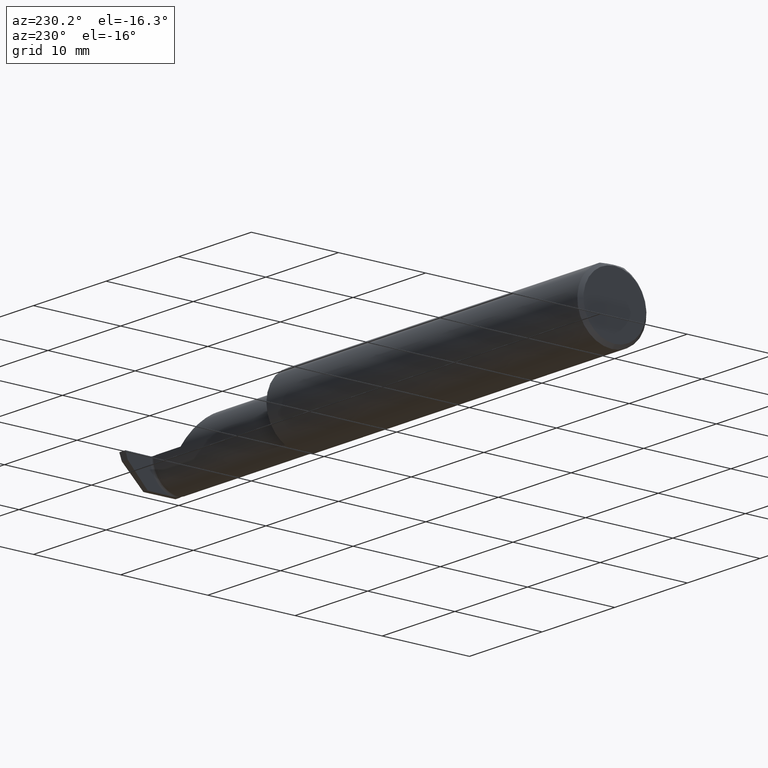
[diagram: clean part render]
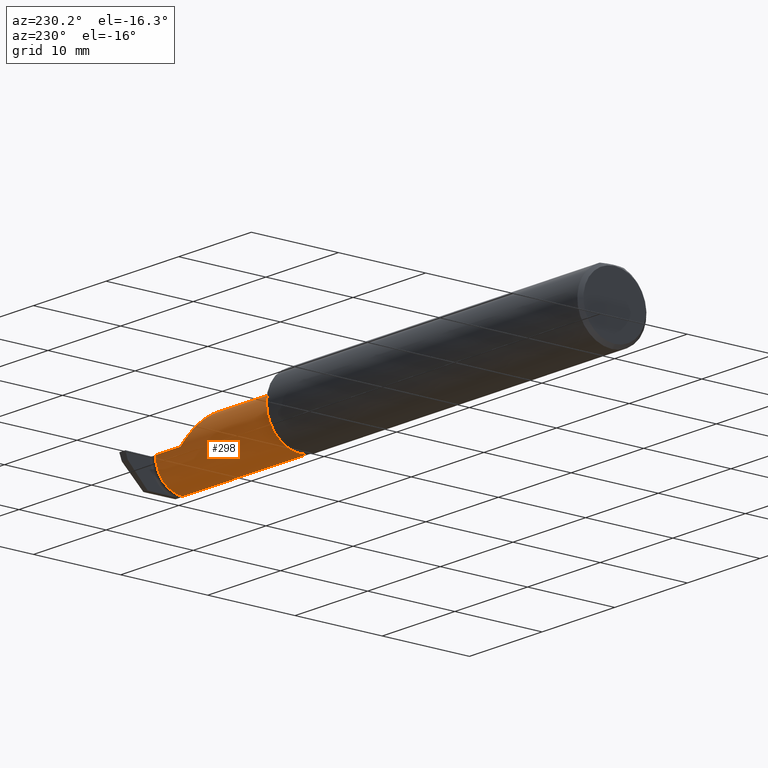
[diagram: same view with one face highlighted and labeled with its STEP entity id]
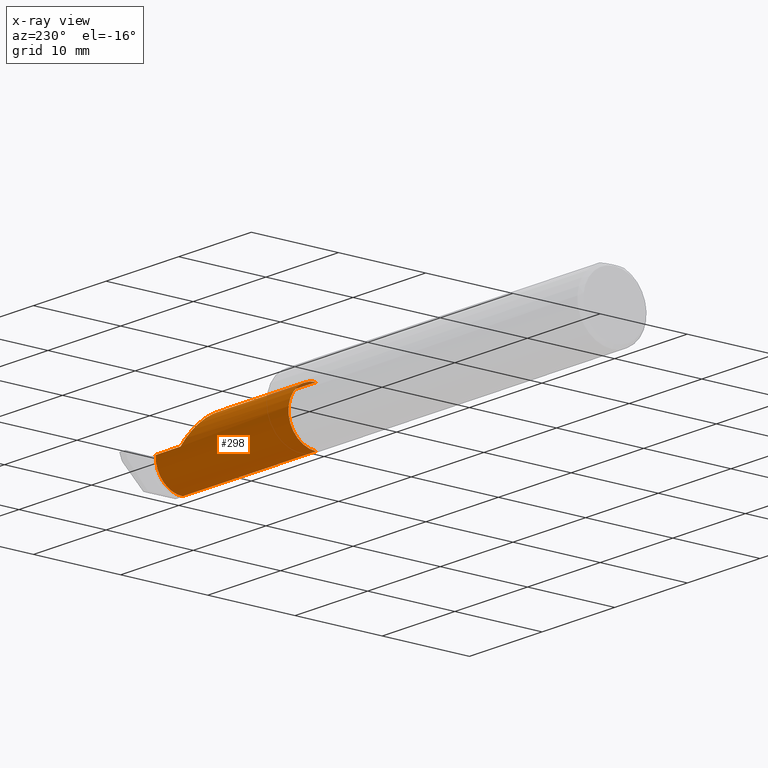
[diagram: x-ray of the same camera — body ghosted, the highlighted face saturated]
A machine part, auxiliary view. The second image highlights one B-rep face of the part: STEP entity #298.
The next image is the same camera in x-ray: the body ghosted, the highlighted face saturated — about 1% of this face is hidden behind the body in this view.
In plain terms, the highlighted cylindrical surface (edge-blend (fillet) strip) has radius 3.175 mm, axis along (-1, -0, -0).
Its self-contained STEP definition (entity closure, byte-faithful):
#34 = ORIENTED_EDGE ( 'NONE', *, *, #652, .T. ) ;
#58 = CARTESIAN_POINT ( 'NONE',  ( 2.444500000000001450, 0.03590000000000021646, 7.028497217765240013E-18 ) ) ;
#63 = VECTOR ( 'NONE', #1084, 39.37007874015748143 ) ;
#100 = CARTESIAN_POINT ( 'NONE',  ( 1.724999999999999867, -0.08909999999999998477, 0.1250000000000000000 ) ) ;
#111 = CARTESIAN_POINT ( 'NONE',  ( 2.310000000000000053, 0.03589999999999998748, 2.326828918379970872E-17 ) ) ;
#115 = ORIENTED_EDGE ( 'NONE', *, *, #343, .T. ) ;
#207 = CARTESIAN_POINT ( 'NONE',  ( 2.448913571814039791, -0.03369782742854580265, -0.1123476434581986705 ) ) ;
#211 = B_SPLINE_CURVE_WITH_KNOTS ( 'NONE', 3,
 ( #58, #973, #315, #372, #1053, #221, #305, #293, #460, #960, #310, #540, #207, #978, #898, #213, #1069, #477 ),
 .UNSPECIFIED., .F., .F.,
 ( 4, 2, 2, 2, 2, 2, 2, 2, 4 ),
 ( 0.000000000000000000, 0.0006227411263175625360, 0.001245482252635124855, 0.001868223378952686958, 0.002490964505270249710, 0.003113705631587812030, 0.003736446757905374783, 0.004359187884222937535, 0.004981929010540499421 ),
 .UNSPECIFIED. ) ;
#212 = DIRECTION ( 'NONE',  ( 1.000000000000000000, 0.000000000000000000, 0.000000000000000000 ) ) ;
#213 = CARTESIAN_POINT ( 'NONE',  ( 2.449412845796526739, -0.07276030810656955450, -0.1241975159408240520 ) ) ;
#221 = CARTESIAN_POINT ( 'NONE',  ( 2.446698173342042537, 0.02323142959458846316, -0.05543537990692439660 ) ) ;
#233 = ORIENTED_EDGE ( 'NONE', *, *, #805, .F. ) ;
#235 = LINE ( 'NONE', #732, #622 ) ;
#239 = VERTEX_POINT ( 'NONE', #385 ) ;
#248 = DIRECTION ( 'NONE',  ( -1.000000000000000000, -0.000000000000000000, -0.000000000000000000 ) ) ;
#279 = VERTEX_POINT ( 'NONE', #707 ) ;
#293 = CARTESIAN_POINT ( 'NONE',  ( 2.447475350432989138, 0.01027685705744557816, -0.07626677045909130426 ) ) ;
#298 = ADVANCED_FACE ( 'NONE', ( #797 ), #1057, .T. ) ;
#299 = CARTESIAN_POINT ( 'NONE',  ( 1.699999999999999956, -0.08909999999999998477, 0.000000000000000000 ) ) ;
#305 = CARTESIAN_POINT ( 'NONE',  ( 2.446973910809203900, 0.01939704973137099803, -0.06261605380782230001 ) ) ;
#310 = CARTESIAN_POINT ( 'NONE',  ( 2.448432691260384875, -0.01281923365878034037, -0.09936793747224012541 ) ) ;
#315 = CARTESIAN_POINT ( 'NONE',  ( 2.445122545141266812, 0.03509086031723458038, -0.01638619919017511584 ) ) ;
#343 = EDGE_CURVE ( 'NONE', #239, #279, #235, .T. ) ;
#352 = ORIENTED_EDGE ( 'NONE', *, *, #916, .T. ) ;
#353 = CARTESIAN_POINT ( 'NONE',  ( 2.185000000000000941, -0.01587669529663685714, 0.1250000000000000278 ) ) ;
#358 = CARTESIAN_POINT ( 'NONE',  ( 2.236776695296637474, 0.03590000000000000829, 0.07322330470336313457 ) ) ;
#372 = CARTESIAN_POINT ( 'NONE',  ( 2.445747129114881790, 0.03189735516174357216, -0.03242710832155488998 ) ) ;
#376 = VECTOR ( 'NONE', #738, 39.37007874015748143 ) ;
#385 = CARTESIAN_POINT ( 'NONE',  ( 2.310000000000000053, 0.03589999999999998748, 2.326828918379970872E-17 ) ) ;
#417 = ORIENTED_EDGE ( 'NONE', *, *, #447, .F. ) ;
#427 = AXIS2_PLACEMENT_3D ( 'NONE', #997, #248, #829 ) ;
#447 = EDGE_CURVE ( 'NONE', #658, #891, #481, .T. ) ;
#460 = CARTESIAN_POINT ( 'NONE',  ( 2.447717782613100468, 0.005034117901016875105, -0.08264370434526399634 ) ) ;
#468 = CARTESIAN_POINT ( 'NONE',  ( 2.185000000000000941, -0.08909999999999998477, 0.1250000000000000000 ) ) ;
#477 = CARTESIAN_POINT ( 'NONE',  ( 2.449428652511890903, -0.08909999999992178343, -0.1249999999999999445 ) ) ;
#481 = CIRCLE ( 'NONE', #427, 0.1250000000000000000 ) ;
#540 = CARTESIAN_POINT ( 'NONE',  ( 2.448786593093535746, -0.02650700096796817715, -0.1085120213767434699 ) ) ;
#559 = EDGE_CURVE ( 'NONE', #646, #891, #904, .T. ) ;
#622 = VECTOR ( 'NONE', #212, 39.37007874015748143 ) ;
#646 = VERTEX_POINT ( 'NONE', #1027 ) ;
#652 = EDGE_CURVE ( 'NONE', #747, #239, #844, .T. ) ;
#658 = VERTEX_POINT ( 'NONE', #100 ) ;
#707 = CARTESIAN_POINT ( 'NONE',  ( 2.444500000000001450, 0.03590000000000021646, 7.028497217765240013E-18 ) ) ;
#727 = CARTESIAN_POINT ( 'NONE',  ( 1.724999999999999867, -0.08909999999999995701, -0.1250000000000000000 ) ) ;
#732 = CARTESIAN_POINT ( 'NONE',  ( 1.699999999999999956, 0.03590000000000001523, 9.797174393178832313E-17 ) ) ;
#738 = DIRECTION ( 'NONE',  ( -1.000000000000000000, -0.000000000000000000, -0.000000000000000000 ) ) ;
#747 = VERTEX_POINT ( 'NONE', #468 ) ;
#777 = CARTESIAN_POINT ( 'NONE',  ( 2.185000000000000941, -0.08909999999999998477, 0.1250000000000000000 ) ) ;
#795 = ORIENTED_EDGE ( 'NONE', *, *, #559, .T. ) ;
#797 = FACE_OUTER_BOUND ( 'NONE', #817, .T. ) ;
#805 = EDGE_CURVE ( 'NONE', #747, #658, #914, .T. ) ;
#817 = EDGE_LOOP ( 'NONE', ( #352, #795, #417, #233, #34, #115 ) ) ;
#829 = DIRECTION ( 'NONE',  ( 0.000000000000000000, 0.000000000000000000, 1.000000000000000000 ) ) ;
#844 =( BOUNDED_CURVE ( )  B_SPLINE_CURVE ( 3, ( #777, #353, #358, #111 ),
 .UNSPECIFIED., .F., .T. ) 
 B_SPLINE_CURVE_WITH_KNOTS ( ( 4, 4 ),
 ( 0.000000000000000000, 1.570796326794896558 ),
 .UNSPECIFIED. ) 
 CURVE ( )  GEOMETRIC_REPRESENTATION_ITEM ( )  RATIONAL_B_SPLINE_CURVE ( ( 1.000000000000000000, 0.8047378541243649375, 0.8047378541243649375, 1.000000000000000000 ) ) 
 REPRESENTATION_ITEM ( '' )  );
#845 = CARTESIAN_POINT ( 'NONE',  ( 1.699999999999999956, -0.08909999999999995701, -0.1250000000000000000 ) ) ;
#888 = DIRECTION ( 'NONE',  ( 0.000000000000000000, 0.000000000000000000, 1.000000000000000000 ) ) ;
#891 = VERTEX_POINT ( 'NONE', #727 ) ;
#898 = CARTESIAN_POINT ( 'NONE',  ( 2.449257651831035165, -0.05670267983408988632, -0.1210058764817270593 ) ) ;
#904 = LINE ( 'NONE', #845, #376 ) ;
#914 = LINE ( 'NONE', #988, #63 ) ;
#916 = EDGE_CURVE ( 'NONE', #279, #646, #211, .T. ) ;
#960 = CARTESIAN_POINT ( 'NONE',  ( 2.448195783567138850, -0.006474748187421824376, -0.09415031483653146793 ) ) ;
#971 = DIRECTION ( 'NONE',  ( -1.000000000000000000, -0.000000000000000000, -0.000000000000000000 ) ) ;
#973 = CARTESIAN_POINT ( 'NONE',  ( 2.444820317936795995, 0.03589999999676751069, -0.008251322930408696438 ) ) ;
#978 = CARTESIAN_POINT ( 'NONE',  ( 2.449147741309573245, -0.04875164844263552705, -0.1185892248176496494 ) ) ;
#988 = CARTESIAN_POINT ( 'NONE',  ( 1.699999999999999956, -0.08909999999999998477, 0.1250000000000000000 ) ) ;
#997 = CARTESIAN_POINT ( 'NONE',  ( 1.724999999999999867, -0.08909999999999998477, 0.000000000000000000 ) ) ;
#1004 = AXIS2_PLACEMENT_3D ( 'NONE', #299, #971, #888 ) ;
#1027 = CARTESIAN_POINT ( 'NONE',  ( 2.449428652511890903, -0.08909999999992178343, -0.1249999999999999445 ) ) ;
#1053 = CARTESIAN_POINT ( 'NONE',  ( 2.446076663561053799, 0.02947894743701960987, -0.04037901243118217909 ) ) ;
#1057 = CYLINDRICAL_SURFACE ( 'NONE', #1004, 0.1250000000000000000 ) ;
#1069 = CARTESIAN_POINT ( 'NONE',  ( 2.449436886767953681, -0.08088281936207375455, -0.1249999999999949069 ) ) ;
#1084 = DIRECTION ( 'NONE',  ( -1.000000000000000000, -0.000000000000000000, -0.000000000000000000 ) ) ;